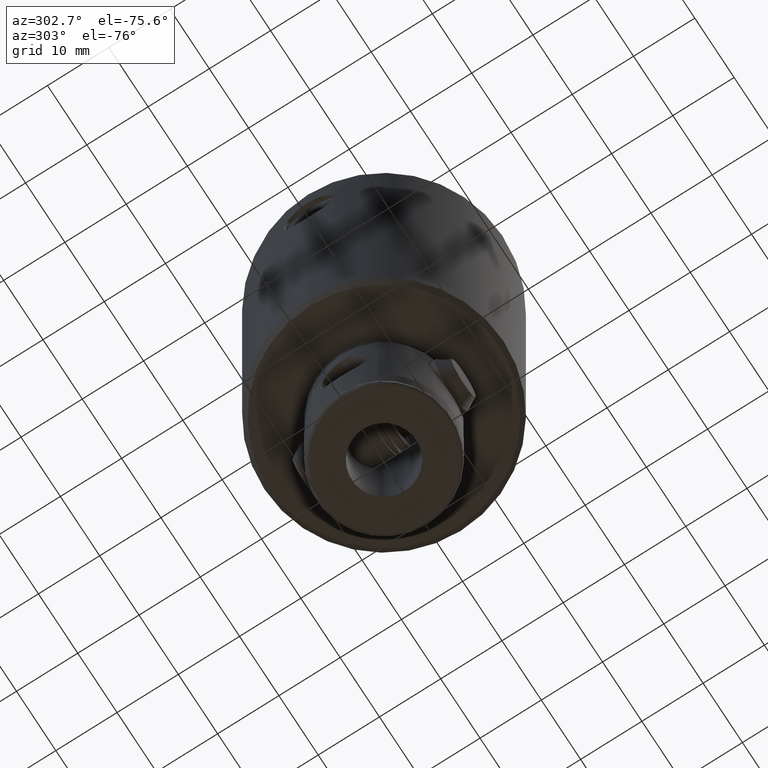
[diagram: clean part render]
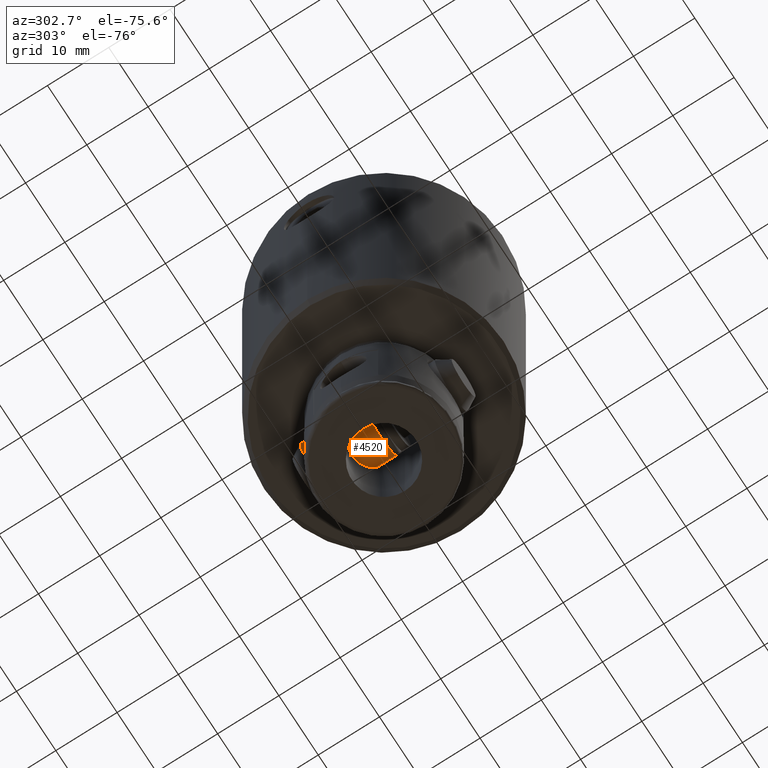
[diagram: same view with one face highlighted and labeled with its STEP entity id]
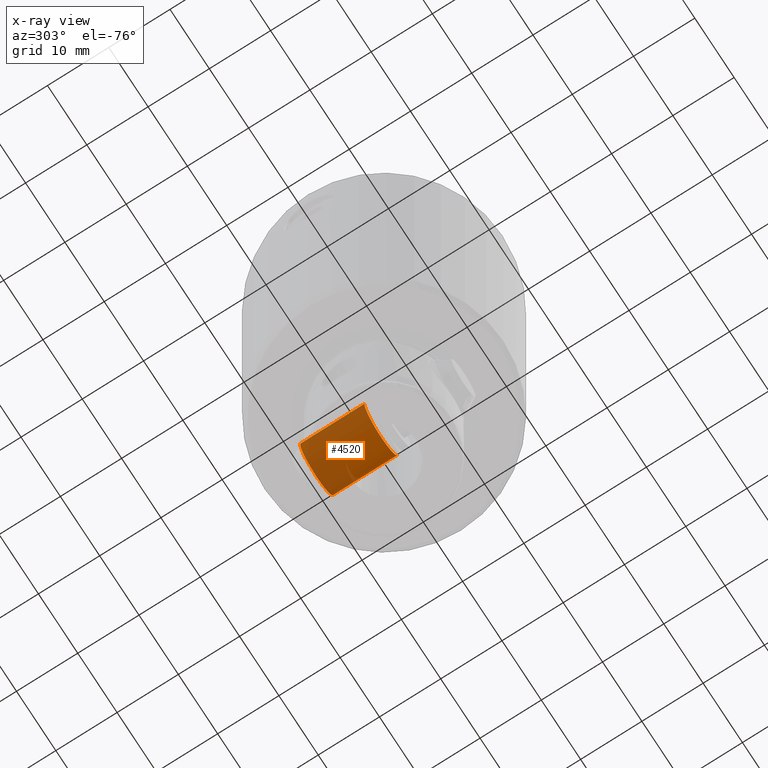
[diagram: x-ray of the same camera — body ghosted, the highlighted face saturated]
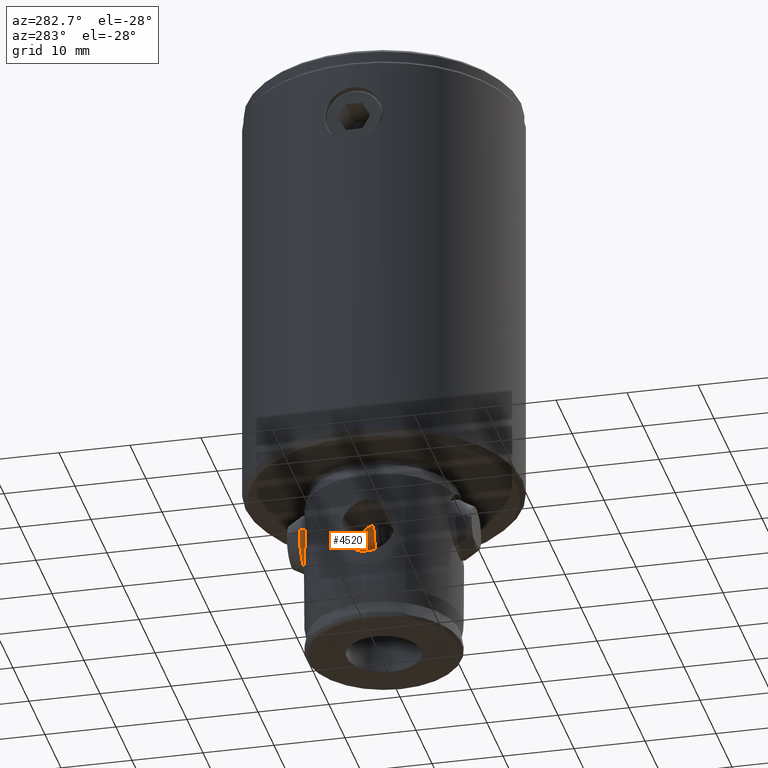
[diagram: same view with one face highlighted and labeled with its STEP entity id]
A machine part, auxiliary view. The second image highlights one B-rep face of the part: STEP entity #4520.
The next image is the same camera in x-ray: the body ghosted, the highlighted face saturated — about 65% of this face is hidden behind the body in this view.
A second angle (auxiliary view) of the same face is appended — the face is thin or edge-on in the first view.
In plain terms, the highlighted cylindrical surface (edge-blend (fillet) strip) has radius 4.2 mm, axis along (-0, -1, -0).
Its self-contained STEP definition (entity closure, byte-faithful):
#73 = VERTEX_POINT ( 'NONE', #2533 ) ;
#221 = CARTESIAN_POINT ( 'NONE',  ( 26.00000000000000000, 6.309250732275284300E-016, -4.199999999999989500 ) ) ;
#560 = CARTESIAN_POINT ( 'NONE',  ( 13.50000000000000200, -1.165734175856445500E-016, 4.199999999999998400 ) ) ;
#797 = CARTESIAN_POINT ( 'NONE',  ( 13.50000000000000200, 0.0000000000000000000, 0.0000000000000000000 ) ) ;
#1028 = VECTOR ( 'NONE', #1647, 1000.000000000000000 ) ;
#1094 = EDGE_LOOP ( 'NONE', ( #3923, #2903, #4071, #3909 ) ) ;
#1156 = DIRECTION ( 'NONE',  ( 0.0000000000000000000, -1.000000000000000000, -2.775557561562898700E-017 ) ) ;
#1176 = VECTOR ( 'NONE', #2419, 1000.000000000000000 ) ;
#1310 = AXIS2_PLACEMENT_3D ( 'NONE', #4377, #2164, #4739 ) ;
#1407 = CYLINDRICAL_SURFACE ( 'NONE', #3651, 4.199999999999989500 ) ;
#1647 = DIRECTION ( 'NONE',  ( -1.000000000000000000, -3.477566089635821700E-031, -1.532239425899526500E-034 ) ) ;
#1874 = DIRECTION ( 'NONE',  ( 0.0000000000000000000, -2.775557561562898100E-017, 1.000000000000000000 ) ) ;
#1923 = CARTESIAN_POINT ( 'NONE',  ( 26.00000000000000000, 0.0000000000000000000, 0.0000000000000000000 ) ) ;
#2026 = CARTESIAN_POINT ( 'NONE',  ( 23.99999999999998900, -1.165734175856421600E-016, 4.199999999999989500 ) ) ;
#2093 = VERTEX_POINT ( 'NONE', #560 ) ;
#2104 = LINE ( 'NONE', #4582, #1028 ) ;
#2130 = LINE ( 'NONE', #221, #1176 ) ;
#2164 = DIRECTION ( 'NONE',  ( -1.000000000000000000, -3.477566089635820800E-031, -1.532239425899526000E-034 ) ) ;
#2292 = DIRECTION ( 'NONE',  ( -1.000000000000000000, -3.477566089635821700E-031, -1.532239425899526500E-034 ) ) ;
#2419 = DIRECTION ( 'NONE',  ( -1.000000000000000000, -3.477566089635821700E-031, -1.532239425899526500E-034 ) ) ;
#2533 = CARTESIAN_POINT ( 'NONE',  ( 23.99999999999998900, 6.309250732275278400E-016, -4.199999999999989500 ) ) ;
#2727 = FACE_OUTER_BOUND ( 'NONE', #1094, .T. ) ;
#2903 = ORIENTED_EDGE ( 'NONE', *, *, #4696, .T. ) ;
#2914 = CARTESIAN_POINT ( 'NONE',  ( 13.50000000000000200, 6.309250732275270500E-016, -4.199999999999998400 ) ) ;
#2998 = CIRCLE ( 'NONE', #1310, 4.199999999999989500 ) ;
#3242 = EDGE_CURVE ( 'NONE', #4639, #2093, #2104, .T. ) ;
#3347 = DIRECTION ( 'NONE',  ( -1.000000000000000000, -1.736302482672547700E-016, -1.540743955509788700E-032 ) ) ;
#3514 = AXIS2_PLACEMENT_3D ( 'NONE', #797, #3347, #1156 ) ;
#3651 = AXIS2_PLACEMENT_3D ( 'NONE', #1923, #2292, #1874 ) ;
#3772 = CIRCLE ( 'NONE', #3514, 4.199999999999986900 ) ;
#3909 = ORIENTED_EDGE ( 'NONE', *, *, #3242, .F. ) ;
#3923 = ORIENTED_EDGE ( 'NONE', *, *, #4110, .T. ) ;
#4071 = ORIENTED_EDGE ( 'NONE', *, *, #4280, .F. ) ;
#4110 = EDGE_CURVE ( 'NONE', #4639, #73, #2998, .T. ) ;
#4172 = VERTEX_POINT ( 'NONE', #2914 ) ;
#4280 = EDGE_CURVE ( 'NONE', #2093, #4172, #3772, .T. ) ;
#4377 = CARTESIAN_POINT ( 'NONE',  ( 23.99999999999998900, 0.0000000000000000000, 0.0000000000000000000 ) ) ;
#4520 = ADVANCED_FACE ( 'NONE', ( #2727 ), #1407, .T. ) ;
#4582 = CARTESIAN_POINT ( 'NONE',  ( 26.00000000000000000, -1.165734175856414400E-016, 4.199999999999989500 ) ) ;
#4639 = VERTEX_POINT ( 'NONE', #2026 ) ;
#4696 = EDGE_CURVE ( 'NONE', #73, #4172, #2130, .T. ) ;
#4739 = DIRECTION ( 'NONE',  ( 0.0000000000000000000, 2.775557561562898100E-017, -1.000000000000000000 ) ) ;